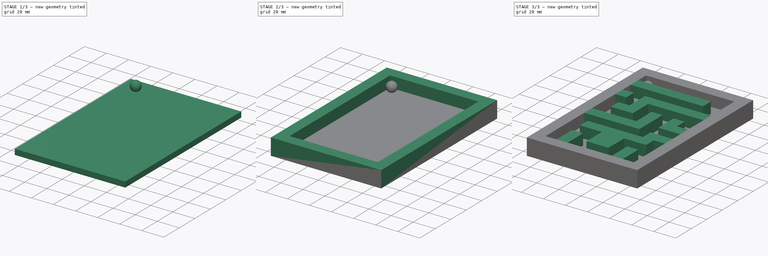
[diagram: build sequence overview — one tinted view per stage of 3, left to right]
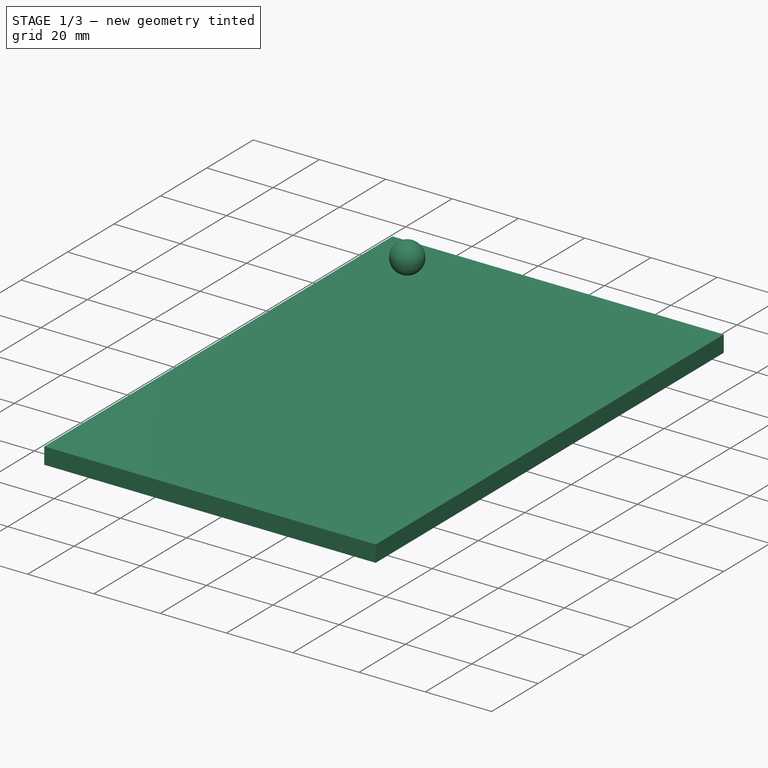
[diagram: stage 1 of 3 — iso view after this stage's code; geometry added in this stage tinted green]
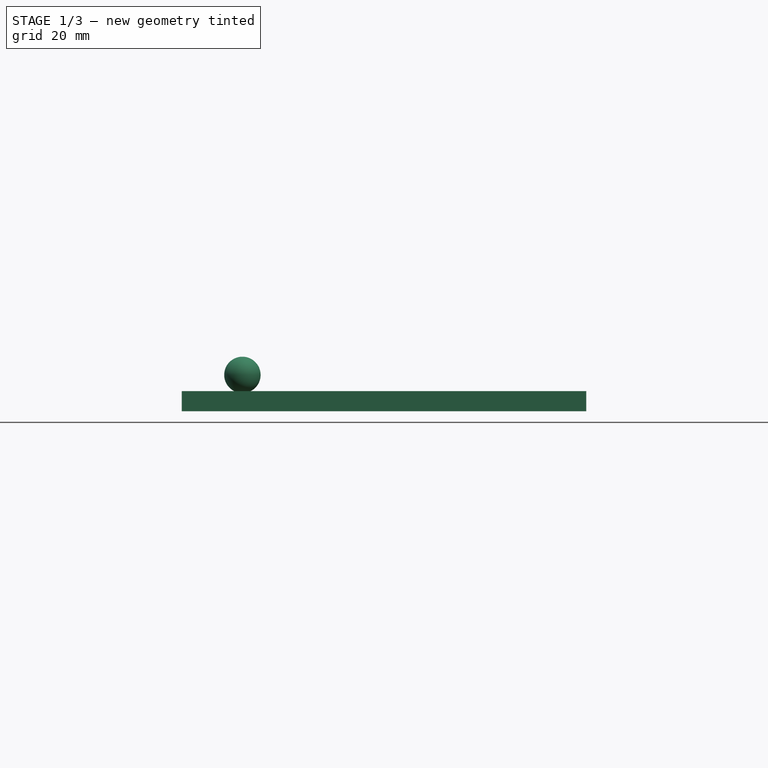
[diagram: stage 1 of 3 — front view after this stage's code; geometry added in this stage tinted green]
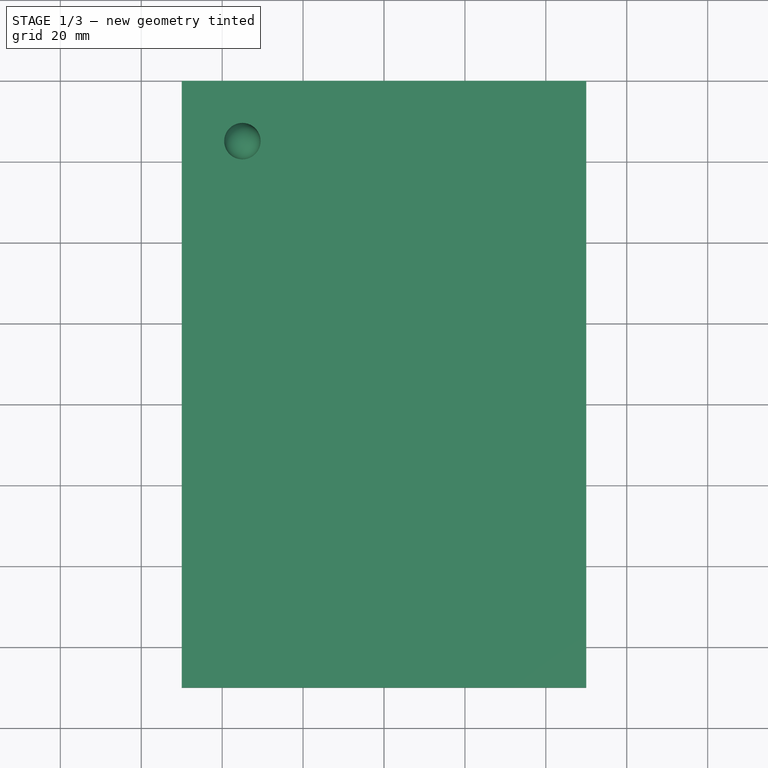
[diagram: stage 1 of 3 — top view after this stage's code; geometry added in this stage tinted green]
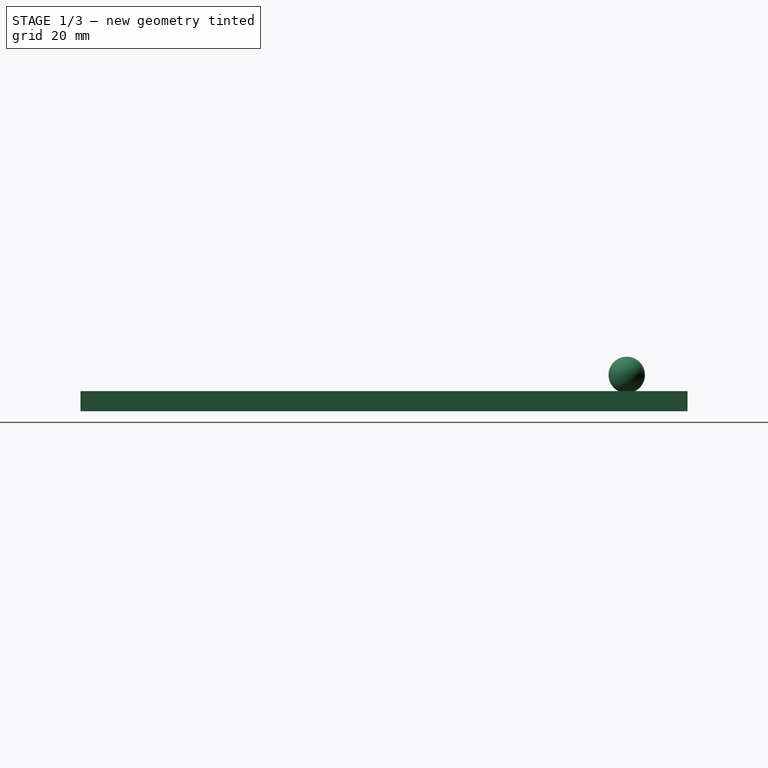
[diagram: stage 1 of 3 — right view after this stage's code; geometry added in this stage tinted green]
FCSTD DOCUMENT  (FreeCAD 0.16R6707 (Git))
Label: Laberinto
License: CreativeCommons Attribution-ShareAlike
LicenseURL: http://creativecommons.org/licenses/by-sa/4.0/
objects: Sketcher::SketchObject×4, PartDesign::Pad×3, PartDesign::Pocket×1, Part::Sphere×1
note: 13 computed .brp shape members not serialized (recipe doc carries the construction recipe); baked Part::Feature solids carry a one-line shape summary decoded from their .brp

FEATURE [Sketcher::SketchObject] Sketch  label="Boceto_base"
  sketch-geometry (4):
    g0: LineSegment StartX=-50 StartY=80 StartZ=0 EndX=50 EndY=80 EndZ=0
    g1: LineSegment StartX=50 StartY=80 StartZ=0 EndX=50 EndY=-70 EndZ=0
    g2: LineSegment StartX=50 StartY=-70 StartZ=0 EndX=-50 EndY=-70 EndZ=0
    g3: LineSegment StartX=-50 StartY=-70 StartZ=0 EndX=-50 EndY=80 EndZ=0
  constraints (8):
    c: Coincident(g0,g1)
    c: Coincident(g1,g2)
    c: Coincident(g2,g3)
    c: Coincident(g3,g0)
    c: Horizontal(g0)
    c: Horizontal(g2)
    c: Vertical(g1)
    c: Vertical(g3)
FEATURE [PartDesign::Pad] Pad  label="Base"
  Length = 5
  Length2 = 100
  Sketch = -> Sketch
  Type = 0
FEATURE [Part::Sphere] Sphere  label="Bola"
  Angle1 = -90
  Angle2 = 90
  Angle3 = 360
  Placement = pos=(-35,65,9) rot=(0,0,1;0rad)
  Radius = 4.5
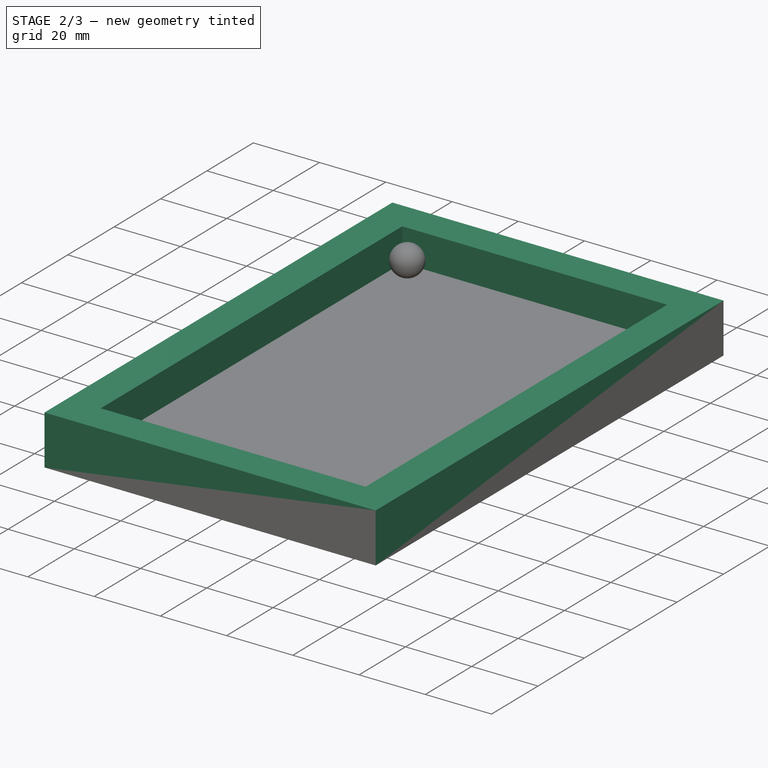
[diagram: stage 2 of 3 — iso view after this stage's code; geometry added in this stage tinted green]
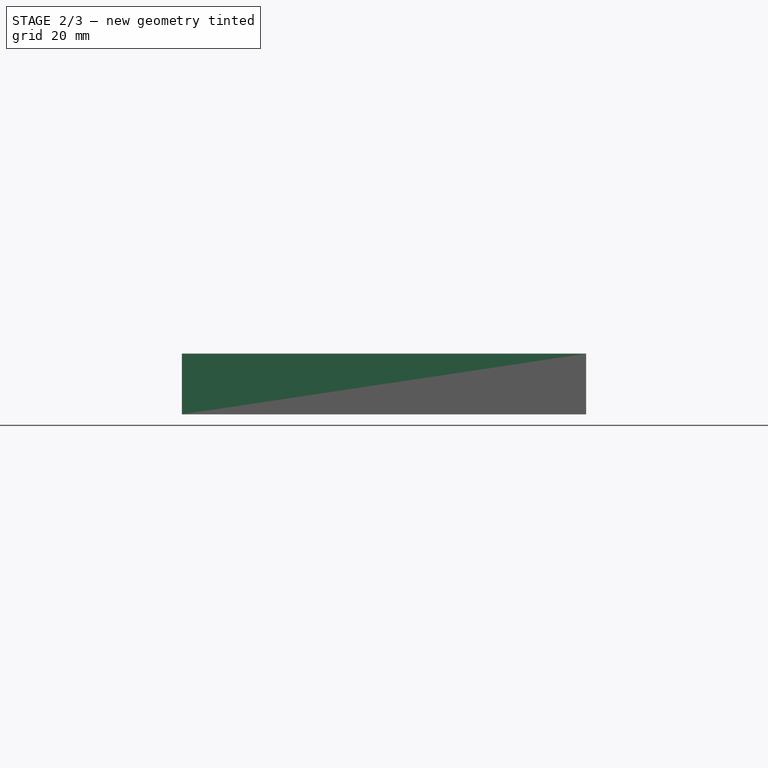
[diagram: stage 2 of 3 — front view after this stage's code; geometry added in this stage tinted green]
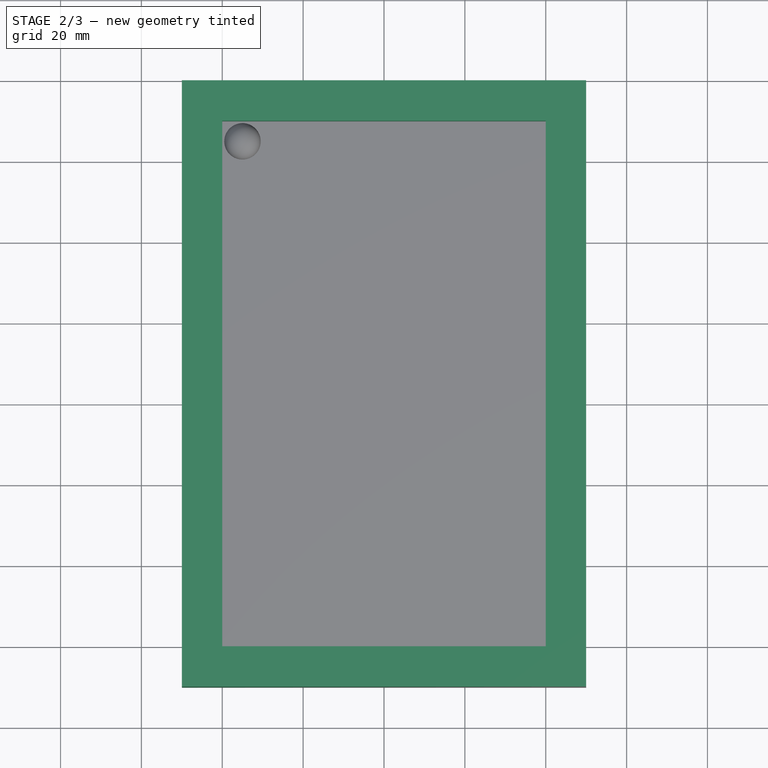
[diagram: stage 2 of 3 — top view after this stage's code; geometry added in this stage tinted green]
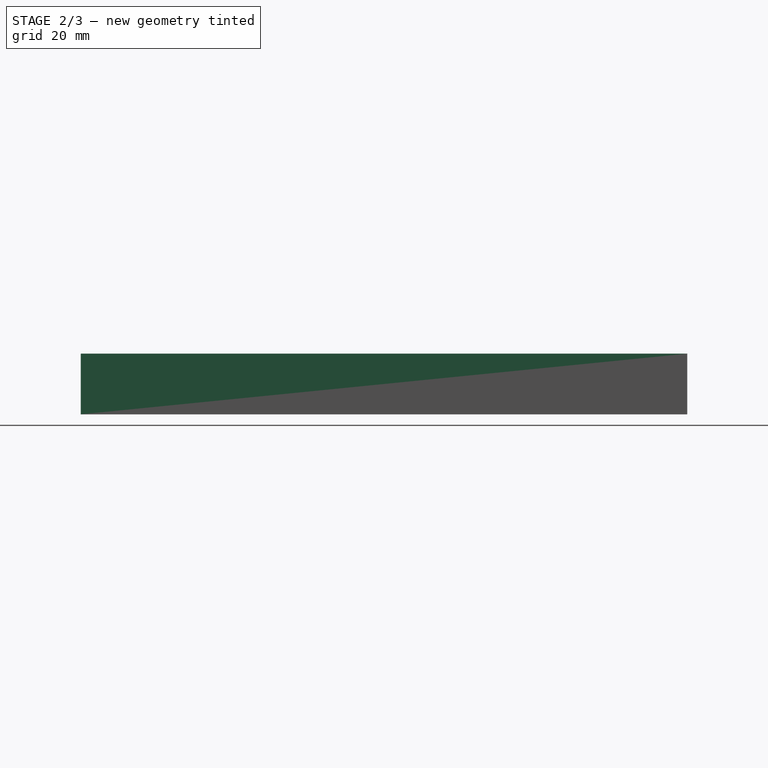
[diagram: stage 2 of 3 — right view after this stage's code; geometry added in this stage tinted green]
FEATURE [Sketcher::SketchObject] Sketch001  label="Boceto_paredes_ext"
  Placement = pos=(0,0,5) rot=(0,0,1;0rad)
  Support = -> Pad [Face6]
  sketch-geometry (8):
    g0: LineSegment StartX=-50 StartY=80 StartZ=0 EndX=50 EndY=80 EndZ=0
    g1: LineSegment StartX=50 StartY=80 StartZ=0 EndX=50 EndY=-70 EndZ=0
    g2: LineSegment StartX=50 StartY=-70 StartZ=0 EndX=-50 EndY=-70 EndZ=0
    g3: LineSegment StartX=-50 StartY=-70 StartZ=0 EndX=-50 EndY=80 EndZ=0
    g4: LineSegment StartX=-40 StartY=-60 StartZ=0 EndX=40 EndY=-60 EndZ=0
    g5: LineSegment StartX=40 StartY=-60 StartZ=0 EndX=40 EndY=70 EndZ=0
    g6: LineSegment StartX=40 StartY=70 StartZ=0 EndX=-40 EndY=70 EndZ=0
    g7: LineSegment StartX=-40 StartY=70 StartZ=0 EndX=-40 EndY=-60 EndZ=0
  constraints (16):
    c: Coincident(g0,g1)
    c: Coincident(g1,g2)
    c: Coincident(g2,g3)
    c: Coincident(g3,g0)
    c: Horizontal(g0)
    c: Horizontal(g2)
    c: Vertical(g1)
    c: Vertical(g3)
    c: Coincident(g4,g5)
    c: Coincident(g5,g6)
    c: Coincident(g6,g7)
    c: Coincident(g7,g4)
    c: Horizontal(g4)
    c: Horizontal(g6)
    c: Vertical(g5)
    c: Vertical(g7)
FEATURE [PartDesign::Pad] Pad001  label="Paredes_ext"
  Length = 10
  Length2 = 100
  Sketch = -> Sketch001
  Type = 0
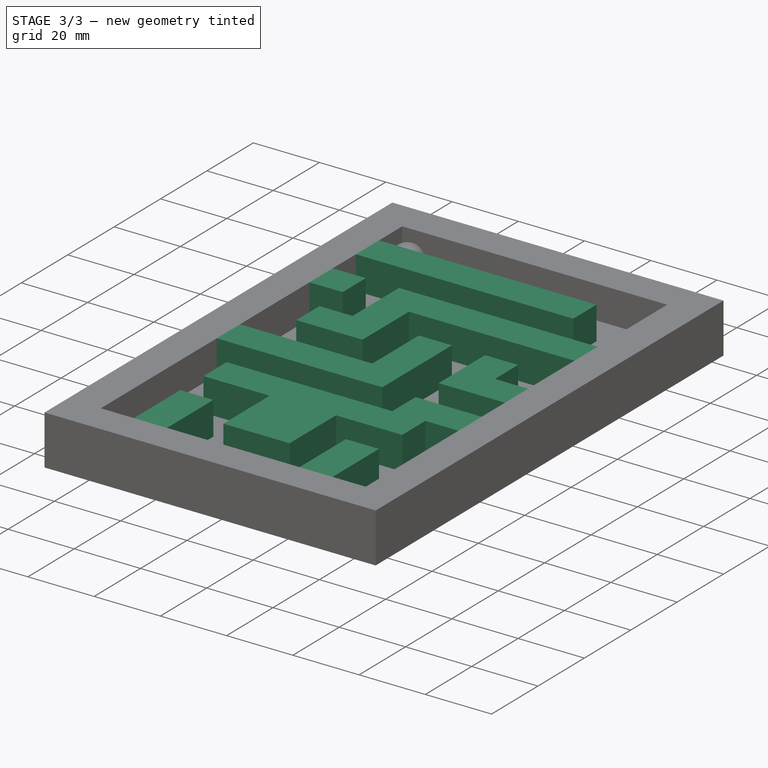
[diagram: stage 3 of 3 — iso view after this stage's code; geometry added in this stage tinted green]
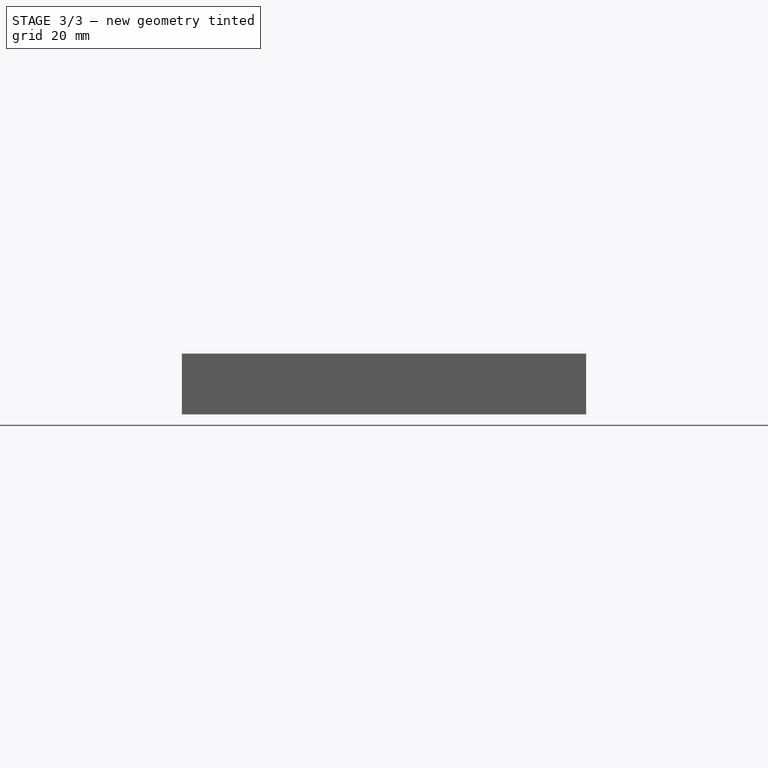
[diagram: stage 3 of 3 — front view after this stage's code; geometry added in this stage tinted green]
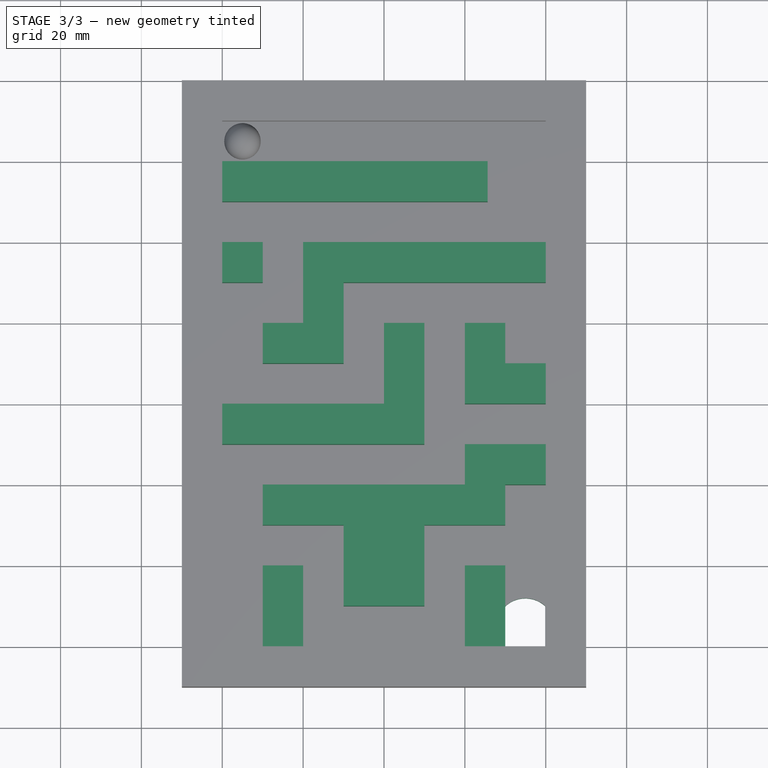
[diagram: stage 3 of 3 — top view after this stage's code; geometry added in this stage tinted green]
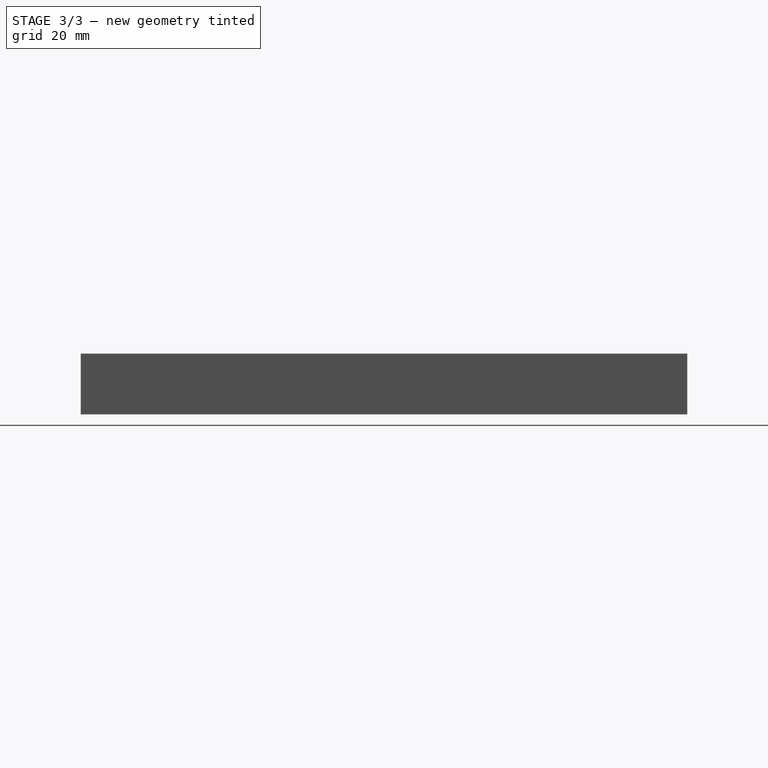
[diagram: stage 3 of 3 — right view after this stage's code; geometry added in this stage tinted green]
FEATURE [Sketcher::SketchObject] Sketch002  label="Boceto_lab"
  Placement = pos=(0,0,5) rot=(0,0,1;0rad)
  Support = -> Pad001 [Face6]
  sketch-geometry (51):
    g0: LineSegment StartX=-40 StartY=60 StartZ=0 EndX=25.6359 EndY=60 EndZ=0
    g1: LineSegment StartX=25.6359 StartY=60 StartZ=0 EndX=25.6359 EndY=50 EndZ=0
    g2: LineSegment StartX=25.6359 StartY=50 StartZ=0 EndX=-40 EndY=50 EndZ=0
    g3: LineSegment StartX=-40 StartY=50 StartZ=0 EndX=-40 EndY=60 EndZ=0
    g4: LineSegment StartX=40 StartY=40 StartZ=0 EndX=-20 EndY=40 EndZ=0
    g5: LineSegment StartX=-20 StartY=40 StartZ=0 EndX=-20 EndY=20 EndZ=0
    g6: LineSegment StartX=-20 StartY=10 StartZ=0 EndX=-10 EndY=10 EndZ=0
    g7: LineSegment StartX=-10 StartY=10 StartZ=0 EndX=-10 EndY=30 EndZ=0
    g8: LineSegment StartX=-10 StartY=30 StartZ=0 EndX=40 EndY=30 EndZ=0
    g9: LineSegment StartX=40 StartY=30 StartZ=0 EndX=40 EndY=40 EndZ=0
    g10: LineSegment StartX=-40 StartY=40 StartZ=0 EndX=-30 EndY=40 EndZ=0
    g11: LineSegment StartX=-30 StartY=40 StartZ=0 EndX=-30 EndY=30 EndZ=0
    g12: LineSegment StartX=-30 StartY=30 StartZ=0 EndX=-40 EndY=30 EndZ=0
    g13: LineSegment StartX=-40 StartY=30 StartZ=0 EndX=-40 EndY=40 EndZ=0
    g14: LineSegment StartX=-20 StartY=20 StartZ=0 EndX=-30 EndY=20 EndZ=0
    g15: LineSegment StartX=-30 StartY=20 StartZ=0 EndX=-30 EndY=10 EndZ=0
    g16: LineSegment StartX=-30 StartY=10 StartZ=0 EndX=-20 EndY=10 EndZ=0
    g17: LineSegment StartX=-40 StartY=-10 StartZ=0 EndX=10 EndY=-10 EndZ=0
    g18: LineSegment StartX=10 StartY=-10 StartZ=0 EndX=10 EndY=0 EndZ=0
    g19: LineSegment StartX=0 StartY=0 StartZ=0 EndX=-40 EndY=0 EndZ=0
    g20: LineSegment StartX=-40 StartY=0 StartZ=0 EndX=-40 EndY=-10 EndZ=0
    g21: LineSegment StartX=0 StartY=0 StartZ=0 EndX=0 EndY=20 EndZ=0
    g22: LineSegment StartX=0 StartY=20 StartZ=0 EndX=10 EndY=20 EndZ=0
    g23: LineSegment StartX=10 StartY=20 StartZ=0 EndX=10 EndY=0 EndZ=0
    g24: LineSegment StartX=20 StartY=20 StartZ=0 EndX=30 EndY=20 EndZ=0
    g25: LineSegment StartX=30 StartY=0 StartZ=0 EndX=20 EndY=0 EndZ=0
    g26: LineSegment StartX=20 StartY=0 StartZ=0 EndX=20 EndY=20 EndZ=0
    g27: LineSegment StartX=30 StartY=10 StartZ=0 EndX=40 EndY=10 EndZ=0
    g28: LineSegment StartX=40 StartY=10 StartZ=0 EndX=40 EndY=0 EndZ=0
    g29: LineSegment StartX=40 StartY=0 StartZ=0 EndX=30 EndY=0 EndZ=0
    g30: LineSegment StartX=30 StartY=20 StartZ=0 EndX=30 EndY=10 EndZ=0
    g31: LineSegment StartX=40 StartY=-10 StartZ=0 EndX=20 EndY=-10 EndZ=0
    g32: LineSegment StartX=20 StartY=-10 StartZ=0 EndX=20 EndY=-20 EndZ=0
    g33: LineSegment StartX=20 StartY=-20 StartZ=0 EndX=-30 EndY=-20 EndZ=0
    g34: LineSegment StartX=-30 StartY=-20 StartZ=0 EndX=-30 EndY=-30 EndZ=0
    g35: LineSegment StartX=-30 StartY=-30 StartZ=0 EndX=-10 EndY=-30 EndZ=0
    g36: LineSegment StartX=30 StartY=-30 StartZ=0 EndX=30 EndY=-20 EndZ=0
    g37: LineSegment StartX=30 StartY=-20 StartZ=0 EndX=40 EndY=-20 EndZ=0
    g38: LineSegment StartX=40 StartY=-20 StartZ=0 EndX=40 EndY=-10 EndZ=0
    g39: LineSegment StartX=-30 StartY=-40 StartZ=0 EndX=-20 EndY=-40 EndZ=0
    g40: LineSegment StartX=-20 StartY=-40 StartZ=0 EndX=-20 EndY=-60 EndZ=0
    g41: LineSegment StartX=-20 StartY=-60 StartZ=0 EndX=-30 EndY=-60 EndZ=0
    g42: LineSegment StartX=-30 StartY=-60 StartZ=0 EndX=-30 EndY=-40 EndZ=0
    g43: LineSegment StartX=10 StartY=-30 StartZ=0 EndX=10 EndY=-50 EndZ=0
    g44: LineSegment StartX=10 StartY=-50 StartZ=0 EndX=-10 EndY=-50 EndZ=0
    g45: LineSegment StartX=-10 StartY=-50 StartZ=0 EndX=-10 EndY=-30 EndZ=0
    g46: LineSegment StartX=20 StartY=-40 StartZ=0 EndX=30 EndY=-40 EndZ=0
    g47: LineSegment StartX=30 StartY=-40 StartZ=0 EndX=30 EndY=-60 EndZ=0
    g48: LineSegment StartX=30 StartY=-60 StartZ=0 EndX=20 EndY=-60 EndZ=0
    g49: LineSegment StartX=20 StartY=-60 StartZ=0 EndX=20 EndY=-40 EndZ=0
    g50: LineSegment StartX=10 StartY=-30 StartZ=0 EndX=30 EndY=-30 EndZ=0
  constraints (77):
    c: Coincident(g0,g1)
    c: Coincident(g1,g2)
    c: Coincident(g2,g3)
    c: Coincident(g3,g0)
    c: Horizontal(g0)
    c: Horizontal(g2)
    c: Vertical(g1)
    c: Vertical(g3)
    c: Coincident(g4,g5)
    c: Coincident(g6,g7)
    c: Coincident(g7,g8)
    c: Coincident(g8,g9)
    c: Coincident(g9,g4)
    c: Coincident(g10,g11)
    c: Coincident(g11,g12)
    c: Coincident(g12,g13)
    c: Coincident(g13,g10)
    c: Coincident(g14,g15)
    c: Coincident(g15,g16)
    c: Coincident(g6,g16)
    c: PointOnObject(g5,g14)
    c: Coincident(g17,g18)
    c: Coincident(g19,g20)
    c: Coincident(g20,g17)
    c: Horizontal(g17)
    c: Horizontal(g19)
    c: Vertical(g18)
    c: Vertical(g20)
    c: Coincident(g21,g22)
    c: Coincident(g22,g23)
    c: Horizontal(g22)
    c: Vertical(g21)
    c: Vertical(g23)
    c: Coincident(g25,g26)
    c: Coincident(g26,g24)
    c: Horizontal(g24)
    c: Horizontal(g25)
    c: Vertical(g26)
    c: Coincident(g27,g28)
    c: Coincident(g28,g29)
    c: Horizontal(g27)
    c: Horizontal(g29)
    c: Vertical(g28)
    c: PointOnObject(g19,g21)
    c: Coincident(g24,g30)
    c: Coincident(g27,g30)
    c: Coincident(g18,g23)
    c: Coincident(g31,g32)
    c: Coincident(g32,g33)
    c: Coincident(g33,g34)
    c: Coincident(g34,g35)
    c: Coincident(g50,g36)
    c: Coincident(g36,g37)
    c: Coincident(g37,g38)
    c: Coincident(g38,g31)
    c: Coincident(g39,g40)
    c: Coincident(g40,g41)
    c: Coincident(g41,g42)
    c: Coincident(g42,g39)
    c: Coincident(g43,g44)
    c: Coincident(g44,g45)
    c: Horizontal(g44)
    c: Vertical(g43)
    c: Vertical(g45)
    c: Coincident(g46,g47)
    c: Coincident(g47,g48)
    c: Coincident(g48,g49)
    c: Coincident(g49,g46)
    c: Horizontal(g46)
    c: Horizontal(g48)
    c: Vertical(g47)
    c: Vertical(g49)
    c: PointOnObject(g35,g45)
    c: PointOnObject(g50,g43)
    c: Tangent(g35,g50)
    c: Coincident(g35,g45)
    c: Coincident(g43,g50)
FEATURE [PartDesign::Pad] Pad002  label="Laberinto"
  Length = 10
  Length2 = 100
  Sketch = -> Sketch002
  Type = 0
FEATURE [Sketcher::SketchObject] Sketch003
  Placement = pos=(0,0,5) rot=(0,0,1;0rad)
  Support = -> Pad002 [Face9]
  sketch-geometry (1):
    g0: Circle CenterX=34.9674 CenterY=-55.2094 CenterZ=0 NormalX=0 NormalY=0 NormalZ=1 Radius=7.24325
FEATURE [PartDesign::Pocket] Pocket  label="Laberinto_con_salida"
  Length = 5
  Sketch = -> Sketch003
  Type = 1
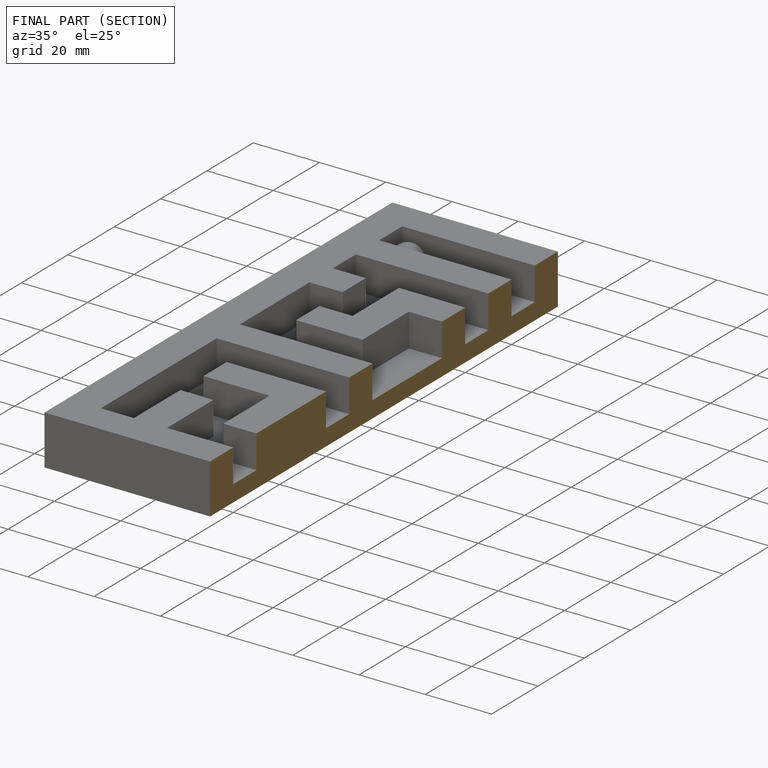
[diagram: finished part — half-section view (interior)]
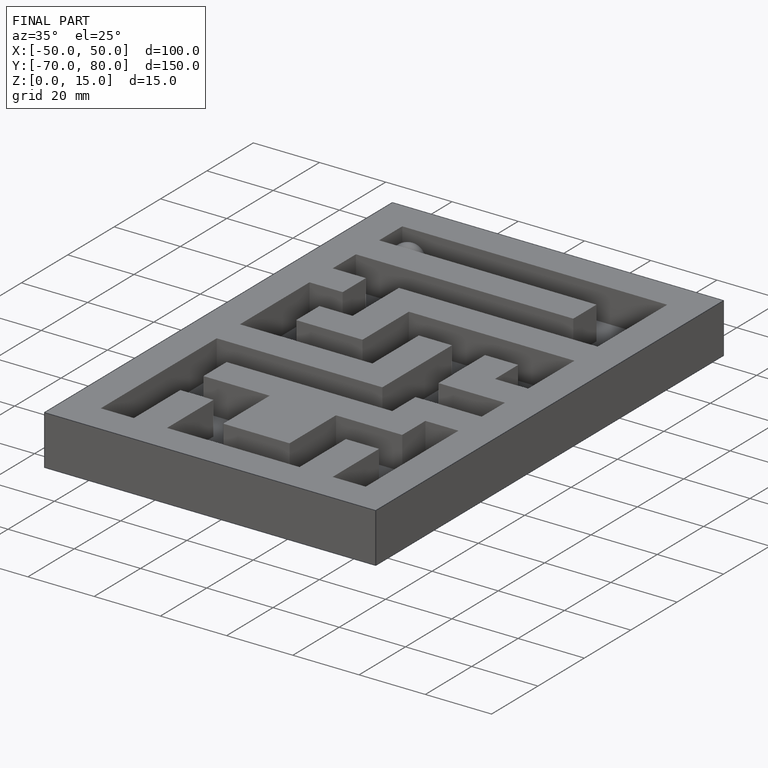
[diagram: finished part — iso view with bounding-box wireframe]
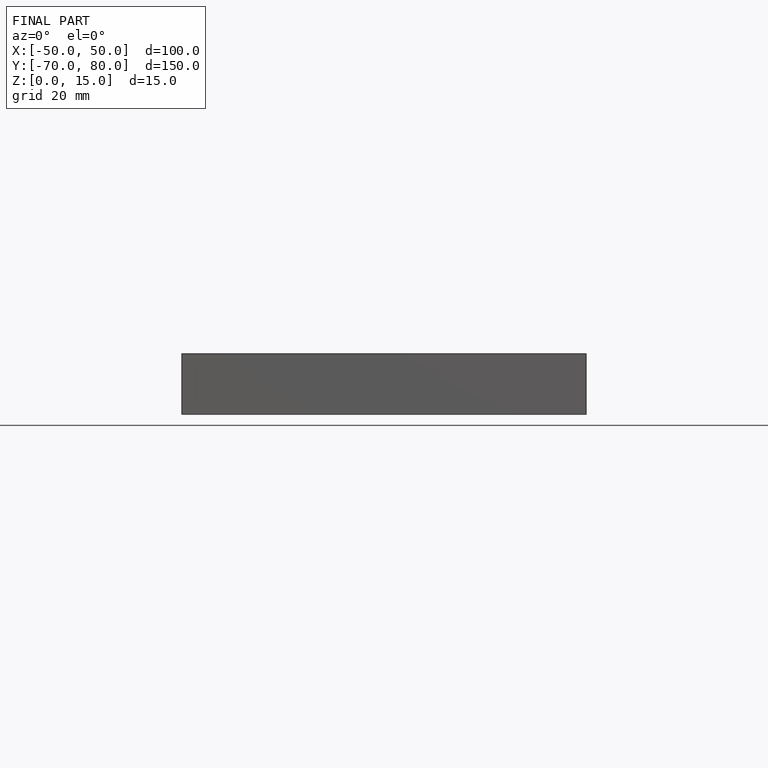
[diagram: finished part — front view with bounding-box wireframe]
